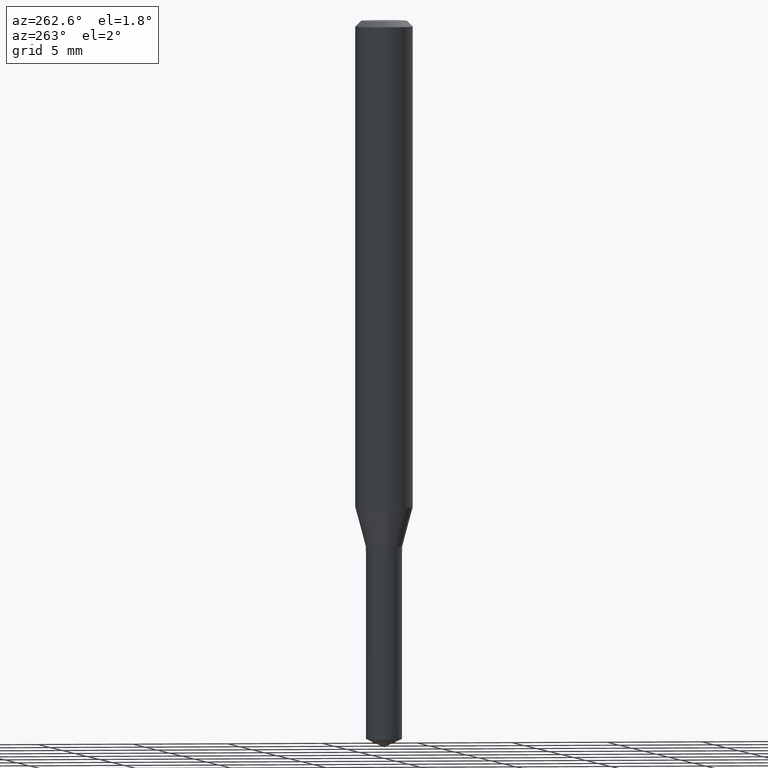
[diagram: clean part render]
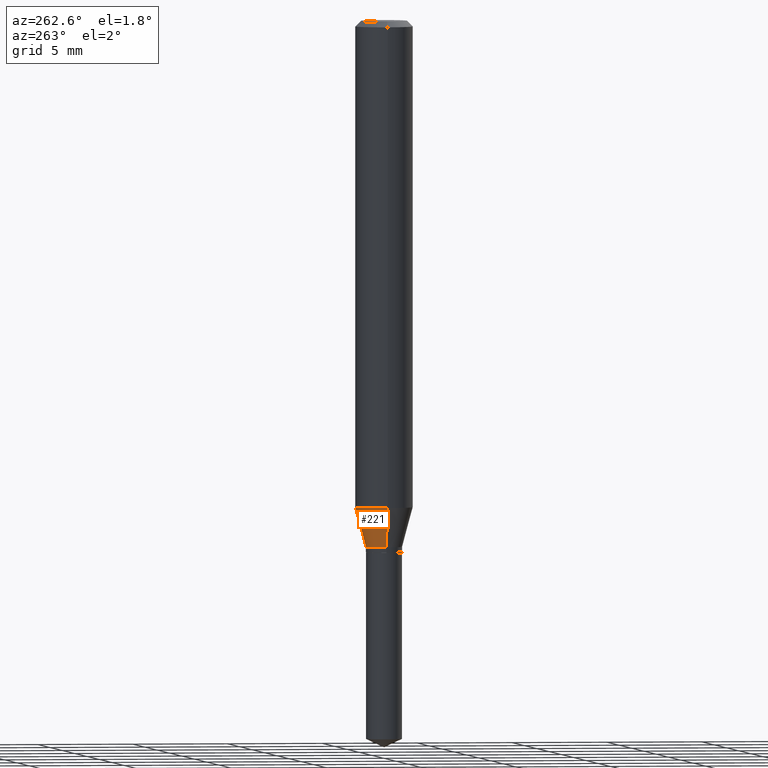
[diagram: same view with one face highlighted and labeled with its STEP entity id]
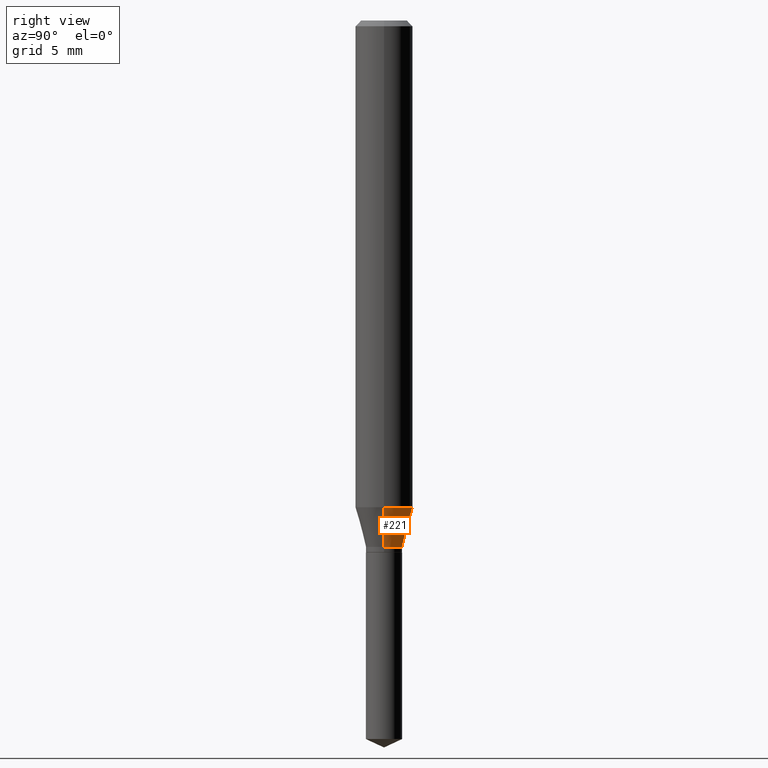
[diagram: same view with one face highlighted and labeled with its STEP entity id]
A machine part, auxiliary view. The second image highlights one B-rep face of the part: STEP entity #221.
A second angle (right view) of the same face is appended — the face is thin or edge-on in the first view.
In plain terms, the highlighted conical surface has half-angle 15 deg.
Its self-contained STEP definition (entity closure, byte-faithful):
#6 = VECTOR ( 'NONE', #11, 39.37007874015748854 ) ;
#9 = CARTESIAN_POINT ( 'NONE',  ( -0.03719999999999999696, -3.517999836666022170E-15, -1.083299999999999930 ) ) ;
#11 = DIRECTION ( 'NONE',  ( -0.2588190451025212391, 5.211531920934549464E-15, 0.9659258262890679791 ) ) ;
#13 = CARTESIAN_POINT ( 'NONE',  ( 0.03719999999999999696, -4.042087945978708713E-15, -1.083299999999999930 ) ) ;
#33 = EDGE_CURVE ( 'NONE', #359, #416, #284, .T. ) ;
#39 = ORIENTED_EDGE ( 'NONE', *, *, #378, .T. ) ;
#53 = EDGE_LOOP ( 'NONE', ( #356, #39, #198, #267 ) ) ;
#59 = AXIS2_PLACEMENT_3D ( 'NONE', #151, #280, #118 ) ;
#60 = DIRECTION ( 'NONE',  ( 1.000000000000000000, -6.982962677686265133E-15, 0.000000000000000000 ) ) ;
#71 = CONICAL_SURFACE ( 'NONE', #94, 0.03719999999999999696, 0.2617993877991499629 ) ;
#94 = AXIS2_PLACEMENT_3D ( 'NONE', #193, #403, #60 ) ;
#95 = EDGE_CURVE ( 'NONE', #106, #153, #448, .T. ) ;
#96 = FACE_OUTER_BOUND ( 'NONE', #53, .T. ) ;
#106 = VERTEX_POINT ( 'NONE', #13 ) ;
#118 = DIRECTION ( 'NONE',  ( 1.000000000000000000, -6.982962677686265133E-15, 0.000000000000000000 ) ) ;
#151 = CARTESIAN_POINT ( 'NONE',  ( 2.649176357740358198E-29, -3.782321734368779516E-15, -1.083299999999999930 ) ) ;
#153 = VERTEX_POINT ( 'NONE', #213 ) ;
#185 = AXIS2_PLACEMENT_3D ( 'NONE', #344, #347, #192 ) ;
#192 = DIRECTION ( 'NONE',  ( 1.000000000000000000, -6.982962677686266711E-15, 0.000000000000000000 ) ) ;
#193 = CARTESIAN_POINT ( 'NONE',  ( 2.649176357740358198E-29, -3.782321734368779516E-15, -1.083299999999999930 ) ) ;
#195 = LINE ( 'NONE', #9, #6 ) ;
#198 = ORIENTED_EDGE ( 'NONE', *, *, #33, .F. ) ;
#213 = CARTESIAN_POINT ( 'NONE',  ( -0.03719999999999999696, -3.536679261828832652E-15, -1.083299999999999930 ) ) ;
#221 = ADVANCED_FACE ( 'NONE', ( #96 ), #71, .T. ) ;
#251 = CARTESIAN_POINT ( 'NONE',  ( 0.05905000000000011628, -3.909951751843382594E-15, -1.001754689854619684 ) ) ;
#266 = VECTOR ( 'NONE', #315, 39.37007874015748854 ) ;
#267 = ORIENTED_EDGE ( 'NONE', *, *, #386, .F. ) ;
#280 = DIRECTION ( 'NONE',  ( -2.445468806185136597E-29, 3.491481338843145583E-15, 1.000000000000000000 ) ) ;
#284 = CIRCLE ( 'NONE', #185, 0.05905000000000011628 ) ;
#308 = CARTESIAN_POINT ( 'NONE',  ( 0.03719999999999999696, -4.042087945978708713E-15, -1.083299999999999930 ) ) ;
#315 = DIRECTION ( 'NONE',  ( 0.2588190451025212391, 1.565188264969622362E-15, 0.9659258262890679791 ) ) ;
#344 = CARTESIAN_POINT ( 'NONE',  ( 2.449759845489138427E-29, -3.497607805726007280E-15, -1.001754689854619684 ) ) ;
#347 = DIRECTION ( 'NONE',  ( -2.445468806185136597E-29, 3.491481338843145583E-15, 1.000000000000000000 ) ) ;
#356 = ORIENTED_EDGE ( 'NONE', *, *, #95, .T. ) ;
#359 = VERTEX_POINT ( 'NONE', #251 ) ;
#378 = EDGE_CURVE ( 'NONE', #153, #416, #195, .T. ) ;
#386 = EDGE_CURVE ( 'NONE', #106, #359, #469, .T. ) ;
#403 = DIRECTION ( 'NONE',  ( -2.445468806185136597E-29, 3.491481338843145583E-15, 1.000000000000000000 ) ) ;
#416 = VERTEX_POINT ( 'NONE', #464 ) ;
#448 = CIRCLE ( 'NONE', #59, 0.03719999999999999696 ) ;
#464 = CARTESIAN_POINT ( 'NONE',  ( -0.05905000000000011628, -3.078032320259667392E-15, -1.001754689854619684 ) ) ;
#469 = LINE ( 'NONE', #308, #266 ) ;